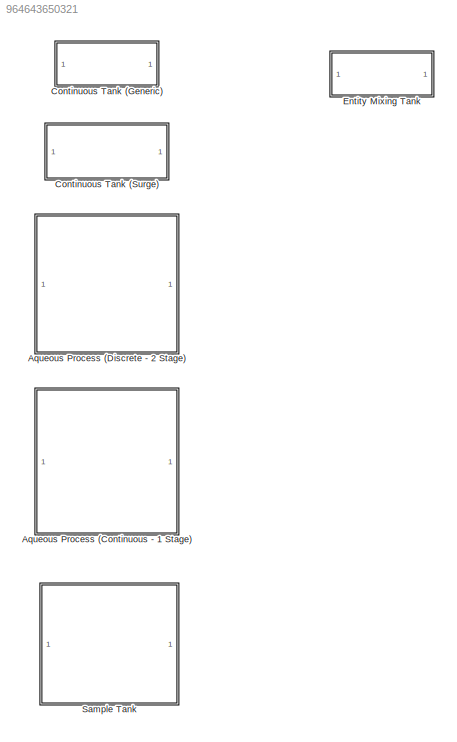
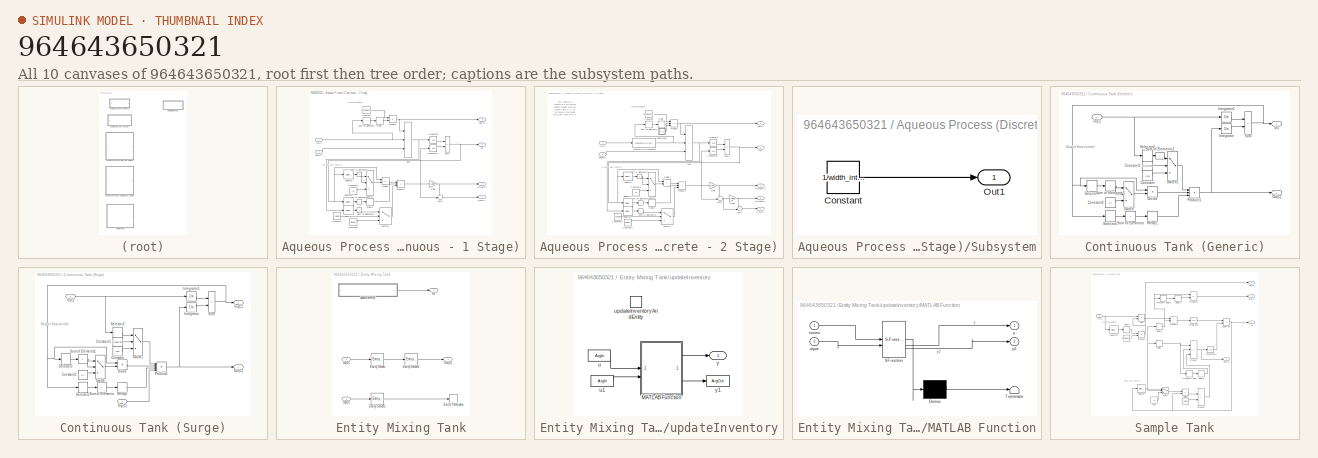
[diagram: thumbnail index - all 10 canvases of the model, root first then tree order]
MODEL slx_964643650321
KIND library
CONFIG AbsTol = auto
CONFIG EnableMultiTasking = off
CONFIG FixedStep = auto
CONFIG MaxStep = auto
CONFIG MinStep = auto
CONFIG RelTol = 1e-3
CONFIG SampleTimeConstraint = Unconstrained
CONFIG SolverName = VariableStepAuto
CONFIG StartTime = 0.0
CONFIG StopTime = 10.0
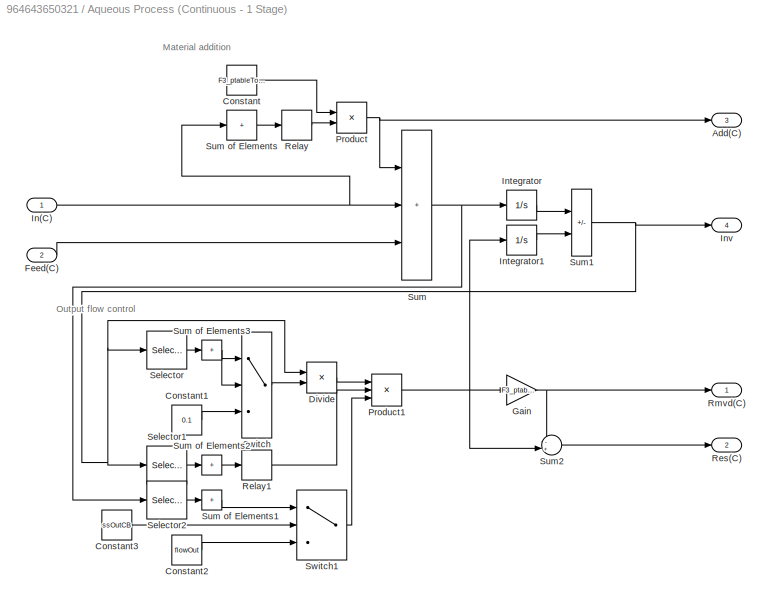
BLOCK [SubSystem] Aqueous Process (Continuous - 1 Stage)
BLOCK [Outport] Aqueous Process (Continuous - 1 Stage)/Add(C)
  Port = 3
BLOCK [Constant] Aqueous Process (Continuous - 1 Stage)/Constant
  Value = F3_ptableToFlow(ptable,false)
BLOCK [Constant] Aqueous Process (Continuous - 1 Stage)/Constant1
  Value = 0.1
BLOCK [Constant] Aqueous Process (Continuous - 1 Stage)/Constant2
  Value = flowOut
BLOCK [Constant] Aqueous Process (Continuous - 1 Stage)/Constant3
  Value = ssOutCB
BLOCK [Product] Aqueous Process (Continuous - 1 Stage)/Divide
  Inputs = */
BLOCK [Inport] Aqueous Process (Continuous - 1 Stage)/Feed(C)
  Port = 2
BLOCK [Gain] Aqueous Process (Continuous - 1 Stage)/Gain
  Gain = F3_ptableToGain(ptable2,false)
BLOCK [Inport] Aqueous Process (Continuous - 1 Stage)/In(C)
BLOCK [Integrator] Aqueous Process (Continuous - 1 Stage)/Integrator
BLOCK [Integrator] Aqueous Process (Continuous - 1 Stage)/Integrator1
BLOCK [Outport] Aqueous Process (Continuous - 1 Stage)/Inv
  Port = 4
BLOCK [Product] Aqueous Process (Continuous - 1 Stage)/Product
BLOCK [Product] Aqueous Process (Continuous - 1 Stage)/Product1
  Inputs = 3
BLOCK [Relay] Aqueous Process (Continuous - 1 Stage)/Relay
BLOCK [Relay] Aqueous Process (Continuous - 1 Stage)/Relay1
  OffSwitchValue = processMn
  OnSwitchValue = processMx
BLOCK [Outport] Aqueous Process (Continuous - 1 Stage)/Res(C)
  Port = 2
BLOCK [Outport] Aqueous Process (Continuous - 1 Stage)/Rmvd(C)
BLOCK [Selector] Aqueous Process (Continuous - 1 Stage)/Selector
  IndexOptions = Index vector (dialog)
  Indices = F3_getArrayPos(flowSpecies)
  InputPortWidth = 1677
  OutputSizes = 1
BLOCK [Selector] Aqueous Process (Continuous - 1 Stage)/Selector1
  IndexOptions = Index vector (dialog)
  Indices = F3_getArrayPos(flowSpecies)
  InputPortWidth = 1677
  OutputSizes = 1
BLOCK [Selector] Aqueous Process (Continuous - 1 Stage)/Selector2
  IndexOptions = Index vector (dialog)
  Indices = F3_getArrayPos(flowSpecies)
  InputPortWidth = 1677
  OutputSizes = 1
BLOCK [Sum] Aqueous Process (Continuous - 1 Stage)/Sum
  IconShape = rectangular
  Inputs = +++
BLOCK [Sum] Aqueous Process (Continuous - 1 Stage)/Sum of Elements
  IconShape = rectangular
  Inputs = +
BLOCK [Sum] Aqueous Process (Continuous - 1 Stage)/Sum of Elements1
  IconShape = rectangular
  Inputs = +
BLOCK [Sum] Aqueous Process (Continuous - 1 Stage)/Sum of Elements2
  IconShape = rectangular
  Inputs = +
BLOCK [Sum] Aqueous Process (Continuous - 1 Stage)/Sum of Elements3
  IconShape = rectangular
  Inputs = +
BLOCK [Sum] Aqueous Process (Continuous - 1 Stage)/Sum1
  IconShape = rectangular
  Inputs = +-
BLOCK [Sum] Aqueous Process (Continuous - 1 Stage)/Sum2
  Inputs = -+|
BLOCK [Switch] Aqueous Process (Continuous - 1 Stage)/Switch
  Criteria = u2 > Threshold
  InputSameDT = off
  SaturateOnIntegerOverflow = off
BLOCK [Switch] Aqueous Process (Continuous - 1 Stage)/Switch1
  Criteria = u2 > Threshold
  InputSameDT = off
  SaturateOnIntegerOverflow = off
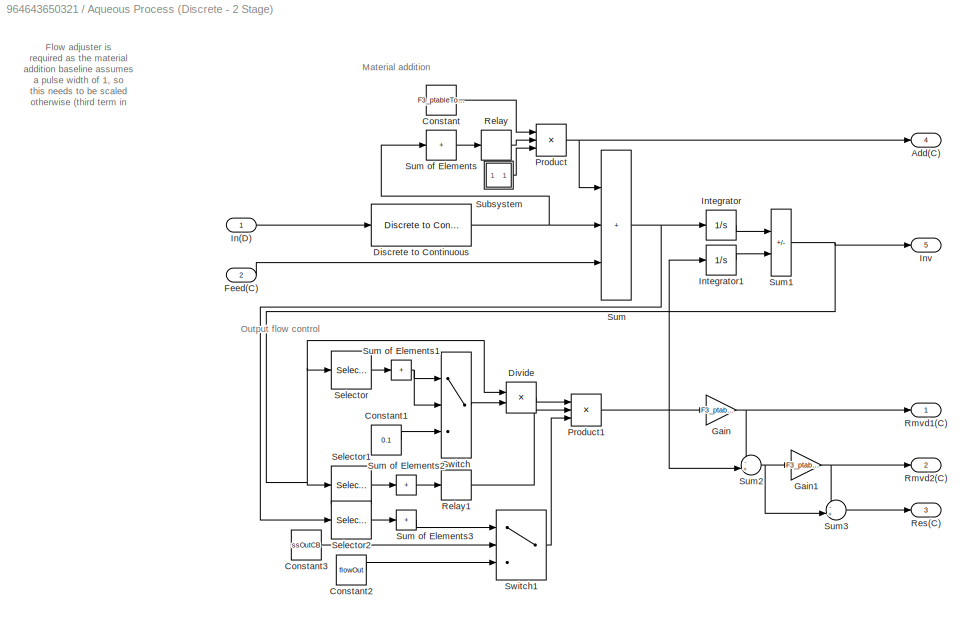
BLOCK [SubSystem] Aqueous Process (Discrete - 2 Stage)
BLOCK [Outport] Aqueous Process (Discrete - 2 Stage)/Add(C)
  Port = 4
BLOCK [Constant] Aqueous Process (Discrete - 2 Stage)/Constant
  Value = F3_ptableToFlow(ptable3,false)
BLOCK [Constant] Aqueous Process (Discrete - 2 Stage)/Constant1
  Value = 0.1
BLOCK [Constant] Aqueous Process (Discrete - 2 Stage)/Constant2
  Value = flowOut
BLOCK [Constant] Aqueous Process (Discrete - 2 Stage)/Constant3
  Value = ssOutCB
BLOCK [Reference] Aqueous Process (Discrete - 2 Stage)/Discrete to Continuous  REF=F3M_commonLib/Discrete to Continuous
  SourceBlock = F3M_commonLib/Discrete to Continuous
  SourceProductName = Fissile Facility Flow Modeler
  SourceType = Discrete to Continuous
BLOCK [Product] Aqueous Process (Discrete - 2 Stage)/Divide
  Inputs = */
BLOCK [Inport] Aqueous Process (Discrete - 2 Stage)/Feed(C)
  Port = 2
BLOCK [Gain] Aqueous Process (Discrete - 2 Stage)/Gain
  Gain = F3_ptableToGain(ptable,false)
BLOCK [Gain] Aqueous Process (Discrete - 2 Stage)/Gain1
  Gain = F3_ptableToGain(ptable2,false)
BLOCK [Inport] Aqueous Process (Discrete - 2 Stage)/In(D)
BLOCK [Integrator] Aqueous Process (Discrete - 2 Stage)/Integrator
BLOCK [Integrator] Aqueous Process (Discrete - 2 Stage)/Integrator1
BLOCK [Outport] Aqueous Process (Discrete - 2 Stage)/Inv
  Port = 5
BLOCK [Product] Aqueous Process (Discrete - 2 Stage)/Product
  Inputs = 3
BLOCK [Product] Aqueous Process (Discrete - 2 Stage)/Product1
  Inputs = 3
BLOCK [Relay] Aqueous Process (Discrete - 2 Stage)/Relay
BLOCK [Relay] Aqueous Process (Discrete - 2 Stage)/Relay1
  OffSwitchValue = processMn
  OnSwitchValue = processMx
BLOCK [Outport] Aqueous Process (Discrete - 2 Stage)/Res(C)
  Port = 3
BLOCK [Outport] Aqueous Process (Discrete - 2 Stage)/Rmvd1(C)
BLOCK [Outport] Aqueous Process (Discrete - 2 Stage)/Rmvd2(C)
  Port = 2
BLOCK [Selector] Aqueous Process (Discrete - 2 Stage)/Selector
  IndexOptions = Index vector (dialog)
  Indices = F3_getArrayPos(flowSpecies)
  InputPortWidth = 1677
  OutputSizes = 1
BLOCK [Selector] Aqueous Process (Discrete - 2 Stage)/Selector1
  IndexOptions = Index vector (dialog)
  Indices = F3_getArrayPos(flowSpecies)
  InputPortWidth = 1677
  OutputSizes = 1
BLOCK [Selector] Aqueous Process (Discrete - 2 Stage)/Selector2
  IndexOptions = Index vector (dialog)
  Indices = F3_getArrayPos(flowSpecies)
  InputPortWidth = 1677
  OutputSizes = 1
BLOCK [SubSystem] Aqueous Process (Discrete - 2 Stage)/Subsystem
BLOCK [Constant] Aqueous Process (Discrete - 2 Stage)/Subsystem/Constant
  Value = 1/width_internal
BLOCK [Outport] Aqueous Process (Discrete - 2 Stage)/Subsystem/Out1
BLOCK [Sum] Aqueous Process (Discrete - 2 Stage)/Sum
  IconShape = rectangular
  Inputs = +++
BLOCK [Sum] Aqueous Process (Discrete - 2 Stage)/Sum of Elements
  IconShape = rectangular
  Inputs = +
BLOCK [Sum] Aqueous Process (Discrete - 2 Stage)/Sum of Elements1
  IconShape = rectangular
  Inputs = +
BLOCK [Sum] Aqueous Process (Discrete - 2 Stage)/Sum of Elements2
  IconShape = rectangular
  Inputs = +
BLOCK [Sum] Aqueous Process (Discrete - 2 Stage)/Sum of Elements3
  IconShape = rectangular
  Inputs = +
BLOCK [Sum] Aqueous Process (Discrete - 2 Stage)/Sum1
  IconShape = rectangular
  Inputs = +-
BLOCK [Sum] Aqueous Process (Discrete - 2 Stage)/Sum2
  Inputs = -+|
BLOCK [Sum] Aqueous Process (Discrete - 2 Stage)/Sum3
  Inputs = -+|
BLOCK [Switch] Aqueous Process (Discrete - 2 Stage)/Switch
  Criteria = u2 > Threshold
  InputSameDT = off
  SaturateOnIntegerOverflow = off
BLOCK [Switch] Aqueous Process (Discrete - 2 Stage)/Switch1
  Criteria = u2 > Threshold
  InputSameDT = off
  SaturateOnIntegerOverflow = off
BLOCK [SubSystem] Continuous Tank (Generic)
BLOCK [Constant] Continuous Tank (Generic)/Constant
  Value = flow
BLOCK [Constant] Continuous Tank (Generic)/Constant1
  Value = sflowrate
BLOCK [Constant] Continuous Tank (Generic)/Constant2
  Value = 0.1
BLOCK [Product] Continuous Tank (Generic)/Divide
  Inputs = */
BLOCK [Inport] Continuous Tank (Generic)/In(C)
BLOCK [Integrator] Continuous Tank (Generic)/Integrator
BLOCK [Integrator] Continuous Tank (Generic)/Integrator1
BLOCK [Outport] Continuous Tank (Generic)/Inv
  Port = 2
BLOCK [Outport] Continuous Tank (Generic)/Out(C)
BLOCK [Product] Continuous Tank (Generic)/Product1
  Inputs = 3
BLOCK [Relay] Continuous Tank (Generic)/Relay1
  OffSwitchValue = tmin
  OnSwitchValue = tmax
BLOCK [Selector] Continuous Tank (Generic)/Selector1
  IndexOptions = Index vector (dialog)
  Indices = F3_getArrayPos(isoelelevel)
  InputPortWidth = 1677
  OutputSizes = 1
BLOCK [Selector] Continuous Tank (Generic)/Selector2
  IndexOptions = Index vector (dialog)
  Indices = F3_getArrayPos(isoelelevel)
  InputPortWidth = 1677
  OutputSizes = 1
BLOCK [Selector] Continuous Tank (Generic)/Selector3
  IndexOptions = Index vector (dialog)
  Indices = F3_getArrayPos(isoelelevel)
  InputPortWidth = 1677
  OutputSizes = 1
BLOCK [Sum] Continuous Tank (Generic)/Sum
  IconShape = rectangular
  Inputs = +-
BLOCK [Sum] Continuous Tank (Generic)/Sum of Elements
  IconShape = rectangular
  Inputs = +
BLOCK [Sum] Continuous Tank (Generic)/Sum of Elements1
  IconShape = rectangular
  Inputs = +
BLOCK [Sum] Continuous Tank (Generic)/Sum of Elements2
  IconShape = rectangular
  Inputs = +
BLOCK [Switch] Continuous Tank (Generic)/Switch
  InputSameDT = off
  SaturateOnIntegerOverflow = off
  Threshold = 0.1
BLOCK [Switch] Continuous Tank (Generic)/Switch1
  Criteria = u2 > Threshold
  InputSameDT = off
  SaturateOnIntegerOverflow = off
BLOCK [SubSystem] Continuous Tank (Surge)
BLOCK [Constant] Continuous Tank (Surge)/Constant
  Value = flow
BLOCK [Constant] Continuous Tank (Surge)/Constant1
  Value = 1-sflowrate
BLOCK [Constant] Continuous Tank (Surge)/Constant2
  Value = 0.1
BLOCK [Product] Continuous Tank (Surge)/Divide
  Inputs = */
BLOCK [Inport] Continuous Tank (Surge)/In(C)
BLOCK [Integrator] Continuous Tank (Surge)/Integrator
BLOCK [Integrator] Continuous Tank (Surge)/Integrator1
BLOCK [Outport] Continuous Tank (Surge)/Inv(C)
  Port = 2
BLOCK [Outport] Continuous Tank (Surge)/Out(C)
BLOCK [Product] Continuous Tank (Surge)/Product1
  Inputs = 4
BLOCK [Relay] Continuous Tank (Surge)/Relay1
  OffSwitchValue = tmin
  OnSwitchValue = tmax
BLOCK [Selector] Continuous Tank (Surge)/Selector1
  IndexOptions = Index vector (dialog)
  Indices = F3_getArrayPos(isoelelevel)
  InputPortWidth = 1677
  OutputSizes = 1
BLOCK [Selector] Continuous Tank (Surge)/Selector2
  IndexOptions = Index vector (dialog)
  Indices = F3_getArrayPos(isoelelevel)
  InputPortWidth = 1677
  OutputSizes = 1
BLOCK [Selector] Continuous Tank (Surge)/Selector3
  IndexOptions = Index vector (dialog)
  Indices = F3_getArrayPos(isoelelevel)
  InputPortWidth = 1677
  OutputSizes = 1
BLOCK [Inport] Continuous Tank (Surge)/Srg(C)
  Port = 2
BLOCK [Sum] Continuous Tank (Surge)/Sum
  IconShape = rectangular
  Inputs = +-
BLOCK [Sum] Continuous Tank (Surge)/Sum of Elements
  IconShape = rectangular
  Inputs = +
BLOCK [Sum] Continuous Tank (Surge)/Sum of Elements1
  IconShape = rectangular
  Inputs = +
BLOCK [Switch] Continuous Tank (Surge)/Switch
  InputSameDT = off
  SaturateOnIntegerOverflow = off
  Threshold = 0.1
BLOCK [Switch] Continuous Tank (Surge)/Switch1
  Criteria = u2 > Threshold
  InputSameDT = off
  SaturateOnIntegerOverflow = off
BLOCK [SubSystem] Entity Mixing Tank
BLOCK [EntityServer] Entity Mixing Tank/Entity Server
  Capacity = 1
  EntryAction = entity.isovec = updateInventoryAndEntity(entity.isovec,1);
  InputPortMap = u2
  InputPortMessageModes = m
  OutputPortMap = o9
  OutputPortMessageModes = m
  ServiceTimeValue = 0
BLOCK [EntityServer] Entity Mixing Tank/Entity Server1
  Capacity = 1
  InputPortMap = u2
  InputPortMessageModes = m
  OutputPortMap = o9
  OutputPortMessageModes = m
  ServiceCompleteAction = updateInventoryAndEntity(entity.isovec,1);
  ServiceTimeValue = 0
BLOCK [EntityServer] Entity Mixing Tank/Entity Server2
  Capacity = 1
  InputPortMap = u2
  InputPortMessageModes = m
  OutputPortMap = o9
  OutputPortMessageModes = m
  ServiceCompleteAction = entity.isovec = updateInventoryAndEntity(entity.isovec,-1);
  ServiceTimeValue = tprocess
BLOCK [EntityTerminator] Entity Mixing Tank/Entity Terminator
  InputPortMap = u0
  InputPortMessageModes = m
BLOCK [Inport] Entity Mixing Tank/In1(D)
BLOCK [Inport] Entity Mixing Tank/In2(D)
  Port = 2
BLOCK [Outport] Entity Mixing Tank/Inv
  Port = 2
BLOCK [Outport] Entity Mixing Tank/Out(D)
BLOCK [SubSystem] Entity Mixing Tank/updateInventory
  TreatAsAtomicUnit = on
BLOCK [SubSystem] Entity Mixing Tank/updateInventory/MATLAB Function
  ErrorFcn = Stateflow.Translate.translate
  LibrarySourceBlock = simulink/User-Defined\nFunctions/MATLAB Function
  PermitHierarchicalResolution = ExplicitOnly
  SFBlockType = MATLAB Function
  TreatAsAtomicUnit = on
BLOCK [Demux] Entity Mixing Tank/updateInventory/MATLAB Function/ Demux 
  Outputs = 1
BLOCK [S-Function] Entity Mixing Tank/updateInventory/MATLAB Function/ SFunction 
  EnableBusSupport = off
  FunctionName = sf_sfun
  PortCounts = [2 3]
  SFcnIsStateOwnerBlock = off
  SFunctionDeploymentMode = off
  Tag = Stateflow S-Function 8
BLOCK [Terminator] Entity Mixing Tank/updateInventory/MATLAB Function/ Terminator 
BLOCK [Inport] Entity Mixing Tank/updateInventory/MATLAB Function/isovec
BLOCK [Inport] Entity Mixing Tank/updateInventory/MATLAB Function/utype
  Port = 2
BLOCK [Outport] Entity Mixing Tank/updateInventory/MATLAB Function/y
BLOCK [Outport] Entity Mixing Tank/updateInventory/MATLAB Function/y2
  Port = 2
BLOCK [ArgIn] Entity Mixing Tank/updateInventory/u
  ArgumentName = u
  DisableCoverage = on
  PortDimensions = 1677
BLOCK [ArgIn] Entity Mixing Tank/updateInventory/u1
  ArgumentName = u1
  DisableCoverage = on
  Port = 2
BLOCK [TriggerPort] Entity Mixing Tank/updateInventory/updateInventoryAndEntity
  FunctionName = updateInventoryAndEntity
  FunctionVisibility = scoped
  IsSimulinkFunction = on
  StatesWhenEnabling = held
  TriggerType = function-call
  VariantControl = (inherit)
BLOCK [Outport] Entity Mixing Tank/updateInventory/y
BLOCK [ArgOut] Entity Mixing Tank/updateInventory/y1
  ArgumentName = y
  DisableCoverage = on
  PortDimensions = 1677
BLOCK [SubSystem] Sample Tank
BLOCK [Constant] Sample Tank/ 
  Value = F3_ptableToFlow(ptable,false)
BLOCK [Constant] Sample Tank/  
  Value = IAT_flowOut
BLOCK [Sum] Sample Tank/Add
  IconShape = rectangular
BLOCK [Outport] Sample Tank/Add(C)
  Port = 3
  VectorParamsAs1DForOutWhenUnconnected = off
BLOCK [Constant] Sample Tank/Con
  Value = 0.1
BLOCK [Product] Sample Tank/Divide
  Inputs = /*
BLOCK [Inport] Sample Tank/In(C)
BLOCK [Integrator] Sample Tank/Integrator
BLOCK [Integrator] Sample Tank/Integrator1
BLOCK [Outport] Sample Tank/Inv
  Port = 4
  VectorParamsAs1DForOutWhenUnconnected = off
BLOCK [Outport] Sample Tank/Out(C)
  VectorParamsAs1DForOutWhenUnconnected = off
BLOCK [Product] Sample Tank/Product
  Inputs = 3
  RndMeth = Zero
BLOCK [Product] Sample Tank/Product1
  RndMeth = Zero
BLOCK [Product] Sample Tank/Product2
  RndMeth = Zero
BLOCK [Product] Sample Tank/Product3
  RndMeth = Zero
BLOCK [Product] Sample Tank/Product4
  RndMeth = Zero
BLOCK [Relay] Sample Tank/Relay
  OffSwitchValue = tMin
  OnSwitchValue = tMax
BLOCK [Relay] Sample Tank/Relay1
  OffOutputValue = 1
  OffSwitchValue = tMin
  OnOutputValue = 0
  OnSwitchValue = tMax
BLOCK [Relay] Sample Tank/Relay2
  OffSwitchValue = 0
  OnSwitchValue = 1
BLOCK [Relay] Sample Tank/Relay3
  OffSwitchValue = 0
  OnSwitchValue = 1
BLOCK [Relay] Sample Tank/Relay4
  OffSwitchValue = 0
  OnSwitchValue = 0.01
BLOCK [Selector] Sample Tank/Selector
  IndexOptions = Index vector (dialog)
  Indices = [1676]
  InputPortWidth = 1677
  OutputSizes = 1
BLOCK [Selector] Sample Tank/Selector1
  IndexOptions = Index vector (dialog)
  Indices = [1676]
  InputPortWidth = 1677
  OutputSizes = 1
BLOCK [Outport] Sample Tank/Srg(C)
  Port = 2
  VectorParamsAs1DForOutWhenUnconnected = off
BLOCK [Sum] Sample Tank/Subtract
  IconShape = rectangular
  Inputs = +-
BLOCK [Switch] Sample Tank/Switch
  InputSameDT = off
  SaturateOnIntegerOverflow = off
  Threshold = 0.1
BLOCK [TransportDelay] Sample Tank/Transport Delay
  DelayTime = delayT
BLOCK [TransportDelay] Sample Tank/Transport Delay1
  DelayTime = delayT
ANNOTATION Aqueous Process (Continuous - 1 Stage): Material addition
ANNOTATION Aqueous Process (Continuous - 1 Stage): Output flow control
ANNOTATION Aqueous Process (Discrete - 2 Stage): Flow adjuster is required as the material addition baseline assumes a pulse width of 1, so this needs to be scaled otherwise (third term in material adjuster) The D2C pulse width and flow adjust must match!
ANNOTATION Aqueous Process (Discrete - 2 Stage): Material addition
ANNOTATION Aqueous Process (Discrete - 2 Stage): Output flow control
ANNOTATION Continuous Tank (Generic): Output flow control
ANNOTATION Continuous Tank (Surge): Output flow control
ANNOTATION Sample Tank: Flow rate control
ANNOTATION Sample Tank: Material addition
LINE Aqueous Process (Continuous - 1 Stage)/Constant1:1 -> Aqueous Process (Continuous - 1 Stage)/Switch:3
LINE Aqueous Process (Continuous - 1 Stage)/Constant2:1 -> Aqueous Process (Continuous - 1 Stage)/Switch1:3
LINE Aqueous Process (Continuous - 1 Stage)/Constant3:1 -> Aqueous Process (Continuous - 1 Stage)/Switch1:2
LINE Aqueous Process (Continuous - 1 Stage)/Constant:1 -> Aqueous Process (Continuous - 1 Stage)/Product:1
LINE Aqueous Process (Continuous - 1 Stage)/Divide:1 -> Aqueous Process (Continuous - 1 Stage)/Product1:1
LINE Aqueous Process (Continuous - 1 Stage)/Feed(C):1 -> Aqueous Process (Continuous - 1 Stage)/Sum:3
NET Aqueous Process (Continuous - 1 Stage)/Gain:1 -> Aqueous Process (Continuous - 1 Stage)/Rmvd(C):1, Aqueous Process (Continuous - 1 Stage)/Sum2:1
NET Aqueous Process (Continuous - 1 Stage)/In(C):1 -> Aqueous Process (Continuous - 1 Stage)/Sum of Elements:1, Aqueous Process (Continuous - 1 Stage)/Sum:2
LINE Aqueous Process (Continuous - 1 Stage)/Integrator1:1 -> Aqueous Process (Continuous - 1 Stage)/Sum1:2
LINE Aqueous Process (Continuous - 1 Stage)/Integrator:1 -> Aqueous Process (Continuous - 1 Stage)/Sum1:1
NET Aqueous Process (Continuous - 1 Stage)/Product1:1 -> Aqueous Process (Continuous - 1 Stage)/Gain:1, Aqueous Process (Continuous - 1 Stage)/Integrator1:1, Aqueous Process (Continuous - 1 Stage)/Sum2:2
NET Aqueous Process (Continuous - 1 Stage)/Product:1 -> Aqueous Process (Continuous - 1 Stage)/Add(C):1, Aqueous Process (Continuous - 1 Stage)/Sum:1
LINE Aqueous Process (Continuous - 1 Stage)/Relay1:1 -> Aqueous Process (Continuous - 1 Stage)/Product1:2
LINE Aqueous Process (Continuous - 1 Stage)/Relay:1 -> Aqueous Process (Continuous - 1 Stage)/Product:2
LINE Aqueous Process (Continuous - 1 Stage)/Selector1:1 -> Aqueous Process (Continuous - 1 Stage)/Sum of Elements2:1
LINE Aqueous Process (Continuous - 1 Stage)/Selector2:1 -> Aqueous Process (Continuous - 1 Stage)/Sum of Elements1:1
LINE Aqueous Process (Continuous - 1 Stage)/Selector:1 -> Aqueous Process (Continuous - 1 Stage)/Sum of Elements3:1
LINE Aqueous Process (Continuous - 1 Stage)/Sum of Elements1:1 -> Aqueous Process (Continuous - 1 Stage)/Switch1:1
LINE Aqueous Process (Continuous - 1 Stage)/Sum of Elements2:1 -> Aqueous Process (Continuous - 1 Stage)/Relay1:1
NET Aqueous Process (Continuous - 1 Stage)/Sum of Elements3:1 -> Aqueous Process (Continuous - 1 Stage)/Switch:1, Aqueous Process (Continuous - 1 Stage)/Switch:2
LINE Aqueous Process (Continuous - 1 Stage)/Sum of Elements:1 -> Aqueous Process (Continuous - 1 Stage)/Relay:1
NET Aqueous Process (Continuous - 1 Stage)/Sum1:1 -> Aqueous Process (Continuous - 1 Stage)/Divide:1, Aqueous Process (Continuous - 1 Stage)/Inv:1, Aqueous Process (Continuous - 1 Stage)/Selector1:1, Aqueous Process (Continuous - 1 Stage)/Selector:1
LINE Aqueous Process (Continuous - 1 Stage)/Sum2:1 -> Aqueous Process (Continuous - 1 Stage)/Res(C):1
NET Aqueous Process (Continuous - 1 Stage)/Sum:1 -> Aqueous Process (Continuous - 1 Stage)/Integrator:1, Aqueous Process (Continuous - 1 Stage)/Selector2:1
LINE Aqueous Process (Continuous - 1 Stage)/Switch1:1 -> Aqueous Process (Continuous - 1 Stage)/Product1:3
LINE Aqueous Process (Continuous - 1 Stage)/Switch:1 -> Aqueous Process (Continuous - 1 Stage)/Divide:2
LINE Aqueous Process (Discrete - 2 Stage)/Constant1:1 -> Aqueous Process (Discrete - 2 Stage)/Switch:3
LINE Aqueous Process (Discrete - 2 Stage)/Constant2:1 -> Aqueous Process (Discrete - 2 Stage)/Switch1:3
LINE Aqueous Process (Discrete - 2 Stage)/Constant3:1 -> Aqueous Process (Discrete - 2 Stage)/Switch1:2
LINE Aqueous Process (Discrete - 2 Stage)/Constant:1 -> Aqueous Process (Discrete - 2 Stage)/Product:1
NET Aqueous Process (Discrete - 2 Stage)/Discrete to Continuous:1 -> Aqueous Process (Discrete - 2 Stage)/Sum of Elements:1, Aqueous Process (Discrete - 2 Stage)/Sum:2
LINE Aqueous Process (Discrete - 2 Stage)/Divide:1 -> Aqueous Process (Discrete - 2 Stage)/Product1:1
LINE Aqueous Process (Discrete - 2 Stage)/Feed(C):1 -> Aqueous Process (Discrete - 2 Stage)/Sum:3
NET Aqueous Process (Discrete - 2 Stage)/Gain1:1 -> Aqueous Process (Discrete - 2 Stage)/Rmvd2(C):1, Aqueous Process (Discrete - 2 Stage)/Sum3:1
NET Aqueous Process (Discrete - 2 Stage)/Gain:1 -> Aqueous Process (Discrete - 2 Stage)/Rmvd1(C):1, Aqueous Process (Discrete - 2 Stage)/Sum2:1
LINE Aqueous Process (Discrete - 2 Stage)/In(D):1 -> Aqueous Process (Discrete - 2 Stage)/Discrete to Continuous:1
LINE Aqueous Process (Discrete - 2 Stage)/Integrator1:1 -> Aqueous Process (Discrete - 2 Stage)/Sum1:2
LINE Aqueous Process (Discrete - 2 Stage)/Integrator:1 -> Aqueous Process (Discrete - 2 Stage)/Sum1:1
NET Aqueous Process (Discrete - 2 Stage)/Product1:1 -> Aqueous Process (Discrete - 2 Stage)/Gain:1, Aqueous Process (Discrete - 2 Stage)/Integrator1:1, Aqueous Process (Discrete - 2 Stage)/Sum2:2
NET Aqueous Process (Discrete - 2 Stage)/Product:1 -> Aqueous Process (Discrete - 2 Stage)/Add(C):1, Aqueous Process (Discrete - 2 Stage)/Sum:1
LINE Aqueous Process (Discrete - 2 Stage)/Relay1:1 -> Aqueous Process (Discrete - 2 Stage)/Product1:2
LINE Aqueous Process (Discrete - 2 Stage)/Relay:1 -> Aqueous Process (Discrete - 2 Stage)/Product:2
LINE Aqueous Process (Discrete - 2 Stage)/Selector1:1 -> Aqueous Process (Discrete - 2 Stage)/Sum of Elements2:1
LINE Aqueous Process (Discrete - 2 Stage)/Selector2:1 -> Aqueous Process (Discrete - 2 Stage)/Sum of Elements3:1
LINE Aqueous Process (Discrete - 2 Stage)/Selector:1 -> Aqueous Process (Discrete - 2 Stage)/Sum of Elements1:1
LINE Aqueous Process (Discrete - 2 Stage)/Subsystem/Constant:1 -> Aqueous Process (Discrete - 2 Stage)/Subsystem/Out1:1
LINE Aqueous Process (Discrete - 2 Stage)/Subsystem:1 -> Aqueous Process (Discrete - 2 Stage)/Product:3
NET Aqueous Process (Discrete - 2 Stage)/Sum of Elements1:1 -> Aqueous Process (Discrete - 2 Stage)/Switch:1, Aqueous Process (Discrete - 2 Stage)/Switch:2
LINE Aqueous Process (Discrete - 2 Stage)/Sum of Elements2:1 -> Aqueous Process (Discrete - 2 Stage)/Relay1:1
LINE Aqueous Process (Discrete - 2 Stage)/Sum of Elements3:1 -> Aqueous Process (Discrete - 2 Stage)/Switch1:1
LINE Aqueous Process (Discrete - 2 Stage)/Sum of Elements:1 -> Aqueous Process (Discrete - 2 Stage)/Relay:1
NET Aqueous Process (Discrete - 2 Stage)/Sum1:1 -> Aqueous Process (Discrete - 2 Stage)/Divide:1, Aqueous Process (Discrete - 2 Stage)/Inv:1, Aqueous Process (Discrete - 2 Stage)/Selector1:1, Aqueous Process (Discrete - 2 Stage)/Selector:1
NET Aqueous Process (Discrete - 2 Stage)/Sum2:1 -> Aqueous Process (Discrete - 2 Stage)/Gain1:1, Aqueous Process (Discrete - 2 Stage)/Sum3:2
LINE Aqueous Process (Discrete - 2 Stage)/Sum3:1 -> Aqueous Process (Discrete - 2 Stage)/Res(C):1
NET Aqueous Process (Discrete - 2 Stage)/Sum:1 -> Aqueous Process (Discrete - 2 Stage)/Integrator:1, Aqueous Process (Discrete - 2 Stage)/Selector2:1
LINE Aqueous Process (Discrete - 2 Stage)/Switch1:1 -> Aqueous Process (Discrete - 2 Stage)/Product1:3
LINE Aqueous Process (Discrete - 2 Stage)/Switch:1 -> Aqueous Process (Discrete - 2 Stage)/Divide:2
LINE Continuous Tank (Generic)/Constant1:1 -> Continuous Tank (Generic)/Switch1:2
LINE Continuous Tank (Generic)/Constant2:1 -> Continuous Tank (Generic)/Switch:3
LINE Continuous Tank (Generic)/Constant:1 -> Continuous Tank (Generic)/Switch1:3
LINE Continuous Tank (Generic)/Divide:1 -> Continuous Tank (Generic)/Product1:2
NET Continuous Tank (Generic)/In(C):1 -> Continuous Tank (Generic)/Integrator1:1, Continuous Tank (Generic)/Selector2:1
LINE Continuous Tank (Generic)/Integrator1:1 -> Continuous Tank (Generic)/Sum:1
LINE Continuous Tank (Generic)/Integrator:1 -> Continuous Tank (Generic)/Sum:2
NET Continuous Tank (Generic)/Product1:1 -> Continuous Tank (Generic)/Integrator:1, Continuous Tank (Generic)/Out(C):1
LINE Continuous Tank (Generic)/Relay1:1 -> Continuous Tank (Generic)/Product1:3
LINE Continuous Tank (Generic)/Selector1:1 -> Continuous Tank (Generic)/Sum of Elements:1
LINE Continuous Tank (Generic)/Selector2:1 -> Continuous Tank (Generic)/Sum of Elements2:1
LINE Continuous Tank (Generic)/Selector3:1 -> Continuous Tank (Generic)/Sum of Elements1:1
NET Continuous Tank (Generic)/Sum of Elements1:1 -> Continuous Tank (Generic)/Switch:1, Continuous Tank (Generic)/Switch:2
LINE Continuous Tank (Generic)/Sum of Elements2:1 -> Continuous Tank (Generic)/Switch1:1
LINE Continuous Tank (Generic)/Sum of Elements:1 -> Continuous Tank (Generic)/Relay1:1
NET Continuous Tank (Generic)/Sum:1 -> Continuous Tank (Generic)/Divide:1, Continuous Tank (Generic)/Inv:1, Continuous Tank (Generic)/Selector1:1, Continuous Tank (Generic)/Selector3:1
LINE Continuous Tank (Generic)/Switch1:1 -> Continuous Tank (Generic)/Product1:1
LINE Continuous Tank (Generic)/Switch:1 -> Continuous Tank (Generic)/Divide:2
LINE Continuous Tank (Surge)/Constant1:1 -> Continuous Tank (Surge)/Switch1:2
LINE Continuous Tank (Surge)/Constant2:1 -> Continuous Tank (Surge)/Switch:3
LINE Continuous Tank (Surge)/Constant:1 -> Continuous Tank (Surge)/Switch1:3
LINE Continuous Tank (Surge)/Divide:1 -> Continuous Tank (Surge)/Product1:2
NET Continuous Tank (Surge)/In(C):1 -> Continuous Tank (Surge)/Integrator1:1, Continuous Tank (Surge)/Selector2:1
LINE Continuous Tank (Surge)/Integrator1:1 -> Continuous Tank (Surge)/Sum:1
LINE Continuous Tank (Surge)/Integrator:1 -> Continuous Tank (Surge)/Sum:2
NET Continuous Tank (Surge)/Product1:1 -> Continuous Tank (Surge)/Integrator:1, Continuous Tank (Surge)/Out(C):1
LINE Continuous Tank (Surge)/Relay1:1 -> Continuous Tank (Surge)/Product1:3
LINE Continuous Tank (Surge)/Selector1:1 -> Continuous Tank (Surge)/Sum of Elements:1
LINE Continuous Tank (Surge)/Selector2:1 -> Continuous Tank (Surge)/Switch1:1
LINE Continuous Tank (Surge)/Selector3:1 -> Continuous Tank (Surge)/Sum of Elements1:1
LINE Continuous Tank (Surge)/Srg(C):1 -> Continuous Tank (Surge)/Product1:4
NET Continuous Tank (Surge)/Sum of Elements1:1 -> Continuous Tank (Surge)/Switch:1, Continuous Tank (Surge)/Switch:2
LINE Continuous Tank (Surge)/Sum of Elements:1 -> Continuous Tank (Surge)/Relay1:1
NET Continuous Tank (Surge)/Sum:1 -> Continuous Tank (Surge)/Divide:1, Continuous Tank (Surge)/Inv(C):1, Continuous Tank (Surge)/Selector1:1, Continuous Tank (Surge)/Selector3:1
LINE Continuous Tank (Surge)/Switch1:1 -> Continuous Tank (Surge)/Product1:1
LINE Continuous Tank (Surge)/Switch:1 -> Continuous Tank (Surge)/Divide:2
LINE Entity Mixing Tank/Entity Server1:1 -> Entity Mixing Tank/Entity Terminator:1
LINE Entity Mixing Tank/Entity Server2:1 -> Entity Mixing Tank/Out(D):1
LINE Entity Mixing Tank/Entity Server:1 -> Entity Mixing Tank/Entity Server2:1
LINE Entity Mixing Tank/In1(D):1 -> Entity Mixing Tank/Entity Server:1
LINE Entity Mixing Tank/In2(D):1 -> Entity Mixing Tank/Entity Server1:1
LINE Entity Mixing Tank/updateInventory/MATLAB Function:1 -> Entity Mixing Tank/updateInventory/y:1
LINE Entity Mixing Tank/updateInventory/MATLAB Function:2 -> Entity Mixing Tank/updateInventory/y1:1
LINE Entity Mixing Tank/updateInventory/u1:1 -> Entity Mixing Tank/updateInventory/MATLAB Function:2
LINE Entity Mixing Tank/updateInventory/u:1 -> Entity Mixing Tank/updateInventory/MATLAB Function:1
LINE Entity Mixing Tank/updateInventory:1 -> Entity Mixing Tank/Inv:1
LINE Sample Tank/  :1 -> Sample Tank/Product1:2
LINE Sample Tank/ :1 -> Sample Tank/Product4:2
LINE Sample Tank/Add:1 -> Sample Tank/Product2:1
LINE Sample Tank/Con:1 -> Sample Tank/Switch:3
LINE Sample Tank/Divide:1 -> Sample Tank/Product1:1
NET Sample Tank/In(C):1 -> Sample Tank/Add:1, Sample Tank/Selector1:1
LINE Sample Tank/Integrator1:1 -> Sample Tank/Subtract:2
LINE Sample Tank/Integrator:1 -> Sample Tank/Subtract:1
LINE Sample Tank/Product1:1 -> Sample Tank/Product:3
LINE Sample Tank/Product2:1 -> Sample Tank/Integrator:1
LINE Sample Tank/Product3:1 -> Sample Tank/Srg(C):1
NET Sample Tank/Product4:1 -> Sample Tank/Add(C):1, Sample Tank/Add:2
NET Sample Tank/Product:1 -> Sample Tank/Integrator1:1, Sample Tank/Out(C):1
NET Sample Tank/Relay1:1 -> Sample Tank/Product2:2, Sample Tank/Product3:1, Sample Tank/Transport Delay1:1
LINE Sample Tank/Relay2:1 -> Sample Tank/Product3:2
LINE Sample Tank/Relay3:1 -> Sample Tank/Product:2
LINE Sample Tank/Relay4:1 -> Sample Tank/Product4:1
NET Sample Tank/Relay:1 -> Sample Tank/Product:1, Sample Tank/Transport Delay:1
LINE Sample Tank/Selector1:1 -> Sample Tank/Relay4:1
NET Sample Tank/Selector:1 -> Sample Tank/Relay1:1, Sample Tank/Relay:1, Sample Tank/Switch:1, Sample Tank/Switch:2
NET Sample Tank/Subtract:1 -> Sample Tank/Divide:2, Sample Tank/Inv:1, Sample Tank/Selector:1
LINE Sample Tank/Switch:1 -> Sample Tank/Divide:1
LINE Sample Tank/Transport Delay1:1 -> Sample Tank/Relay2:1
LINE Sample Tank/Transport Delay:1 -> Sample Tank/Relay3:1
note: NET lines group one-source signal fan-out (src -> all destinations, sorted); 1:1 wires keep LINE
CHART Entity Mixing Tank/updateInventory/MATLAB Function states=1 transitions=1
  STATE_LABEL 'eML_blk_kernel()'
  STATE_LABEL 'SCRIPT:\nfunction [y,y2]= fcn(isovec, utype)\n\npersistent inventory\n\n\nif isempty(inventory)\n    inventory = isovec;\nelse\n    if utype == 1 \n        inventory = inventory+isovec;\n    else \n        isovec = inventory;\n        inventory = inventory-isovec;\n    end\nend\n\n\n\n\ny = inventory;\ny2 = isovec;'
CHART  states=0 transitions=0
